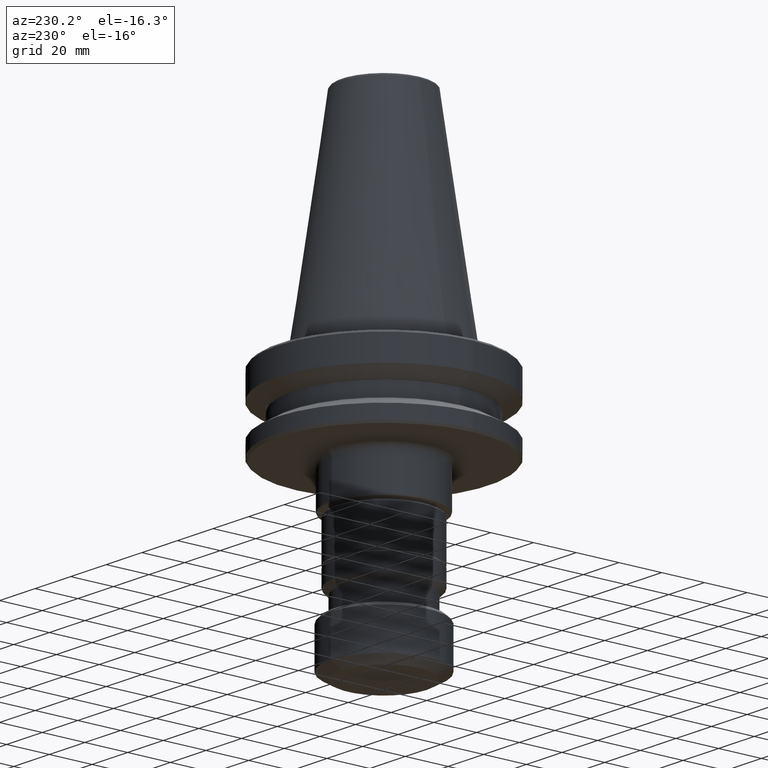
[diagram: clean part render]
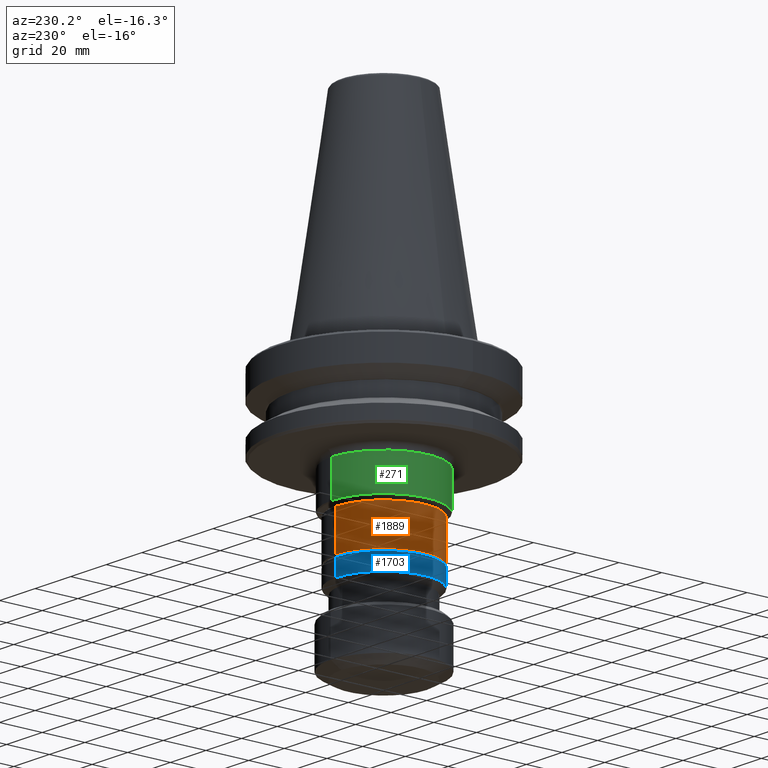
[diagram: same view with three faces highlighted in distinct colors, each labeled with its STEP entity id]
A machine part, auxiliary view with three faces highlighted in distinct colors.
Their STEP definitions:

[orange] entity #1889 — the highlighted cylindrical surface (partial cylindrical patch) has radius 22.5 mm, axis along (-0, -0, 1).
#104 = AXIS2_PLACEMENT_3D ( 'NONE', #587, #727, #1456 ) ;
#125 = CARTESIAN_POINT ( 'NONE',  ( 2.755455298077545300E-015, 22.49999999997063700, -77.29999999999992600 ) ) ;
#139 = EDGE_CURVE ( 'NONE', #920, #1890, #759, .T. ) ;
#172 = LINE ( 'NONE', #667, #791 ) ;
#234 = AXIS2_PLACEMENT_3D ( 'NONE', #1112, #264, #1264 ) ;
#264 = DIRECTION ( 'NONE',  ( -0.0000000000000000000, -4.261637339316356300E-014, 1.000000000000000000 ) ) ;
#309 = CARTESIAN_POINT ( 'NONE',  ( 0.0000000000000000000, -22.49999999996561700, -59.10000000000162100 ) ) ;
#335 = VECTOR ( 'NONE', #1675, 1000.000000000000000 ) ;
#372 = ORIENTED_EDGE ( 'NONE', *, *, #139, .T. ) ;
#458 = DIRECTION ( 'NONE',  ( -0.0000000000000000000, -4.261637339316356300E-014, 1.000000000000000000 ) ) ;
#537 = ORIENTED_EDGE ( 'NONE', *, *, #1408, .T. ) ;
#566 = AXIS2_PLACEMENT_3D ( 'NONE', #1328, #458, #1476 ) ;
#587 = CARTESIAN_POINT ( 'NONE',  ( 0.0000000000000000000, 0.0000000000000000000, 0.0000000000000000000 ) ) ;
#667 = CARTESIAN_POINT ( 'NONE',  ( 2.755455298077593800E-015, 22.49999999996774100, 9.588684013448052600E-013 ) ) ;
#727 = DIRECTION ( 'NONE',  ( -0.0000000000000000000, -4.261637339316356300E-014, 1.000000000000000000 ) ) ;
#729 = FACE_OUTER_BOUND ( 'NONE', #1654, .T. ) ;
#732 = CIRCLE ( 'NONE', #566, 22.49999999996734300 ) ;
#759 = LINE ( 'NONE', #1402, #335 ) ;
#775 = CARTESIAN_POINT ( 'NONE',  ( 2.755455298077618600E-015, 22.49999999997065800, -59.09999999999971000 ) ) ;
#791 = VECTOR ( 'NONE', #1496, 1000.000000000000000 ) ;
#920 = VERTEX_POINT ( 'NONE', #1008 ) ;
#950 = ORIENTED_EDGE ( 'NONE', *, *, #1064, .F. ) ;
#1008 = CARTESIAN_POINT ( 'NONE',  ( 0.0000000000000000000, -22.49999999996405400, -77.30000000000184500 ) ) ;
#1046 = ORIENTED_EDGE ( 'NONE', *, *, #1739, .F. ) ;
#1064 = EDGE_CURVE ( 'NONE', #1212, #1205, #172, .T. ) ;
#1112 = CARTESIAN_POINT ( 'NONE',  ( 0.0000000000000000000, 2.518627667535995100E-012, -59.10000000000066900 ) ) ;
#1205 = VERTEX_POINT ( 'NONE', #775 ) ;
#1212 = VERTEX_POINT ( 'NONE', #125 ) ;
#1243 = CIRCLE ( 'NONE', #234, 22.49999999996813600 ) ;
#1264 = DIRECTION ( 'NONE',  ( 0.0000000000000000000, -1.000000000000000000, -4.255854927735794100E-014 ) ) ;
#1328 = CARTESIAN_POINT ( 'NONE',  ( 0.0000000000000000000, 3.294245663291581100E-012, -77.30000000000087800 ) ) ;
#1402 = CARTESIAN_POINT ( 'NONE',  ( 0.0000000000000000000, -22.49999999996774100, -9.588684013448052600E-013 ) ) ;
#1408 = EDGE_CURVE ( 'NONE', #1212, #920, #732, .T. ) ;
#1456 = DIRECTION ( 'NONE',  ( 0.0000000000000000000, -1.000000000000000000, -4.261637339316355700E-014 ) ) ;
#1476 = DIRECTION ( 'NONE',  ( 0.0000000000000000000, -1.000000000000000000, -4.255854927735943600E-014 ) ) ;
#1496 = DIRECTION ( 'NONE',  ( -0.0000000000000000000, -4.261637339316356300E-014, 1.000000000000000000 ) ) ;
#1654 = EDGE_LOOP ( 'NONE', ( #950, #537, #372, #1046 ) ) ;
#1675 = DIRECTION ( 'NONE',  ( -0.0000000000000000000, -4.261637339316356300E-014, 1.000000000000000000 ) ) ;
#1739 = EDGE_CURVE ( 'NONE', #1205, #1890, #1243, .T. ) ;
#1753 = CYLINDRICAL_SURFACE ( 'NONE', #104, 22.49999999996774100 ) ;
#1889 = ADVANCED_FACE ( 'NONE', ( #729 ), #1753, .T. ) ;
#1890 = VERTEX_POINT ( 'NONE', #309 ) ;

[blue] entity #1703 — the highlighted cylindrical surface (partial cylindrical patch) has radius 22.5 mm, axis along (-0, -0, 1).
#49 = DIRECTION ( 'NONE',  ( -0.0000000000000000000, -4.261637339316356300E-014, 1.000000000000000000 ) ) ;
#89 = AXIS2_PLACEMENT_3D ( 'NONE', #1315, #440, #1457 ) ;
#105 = CARTESIAN_POINT ( 'NONE',  ( 0.0000000000000000000, 0.0000000000000000000, 0.0000000000000000000 ) ) ;
#197 = CARTESIAN_POINT ( 'NONE',  ( 2.755455298077522400E-015, 22.49999999996715500, 9.588684013447804200E-013 ) ) ;
#241 = DIRECTION ( 'NONE',  ( 0.0000000000000000000, -1.000000000000000000, -4.261637339316356300E-014 ) ) ;
#407 = VERTEX_POINT ( 'NONE', #803 ) ;
#440 = DIRECTION ( 'NONE',  ( -0.0000000000000000000, -4.261637339316356300E-014, 1.000000000000000000 ) ) ;
#503 = VECTOR ( 'NONE', #49, 1000.000000000000000 ) ;
#565 = DIRECTION ( 'NONE',  ( -0.0000000000000000000, -4.261637339316356300E-014, 1.000000000000000000 ) ) ;
#571 = CYLINDRICAL_SURFACE ( 'NONE', #1742, 22.49999999996715500 ) ;
#621 = CARTESIAN_POINT ( 'NONE',  ( 0.0000000000000000000, -22.49999999996715500, -9.588684013447804200E-013 ) ) ;
#682 = LINE ( 'NONE', #197, #503 ) ;
#803 = CARTESIAN_POINT ( 'NONE',  ( 2.755455298077532600E-015, 22.49999999997065100, -78.09999999999939700 ) ) ;
#886 = LINE ( 'NONE', #621, #1624 ) ;
#1031 = VERTEX_POINT ( 'NONE', #1616 ) ;
#1054 = DIRECTION ( 'NONE',  ( -0.0000000000000000000, -4.261637339316356300E-014, 1.000000000000000000 ) ) ;
#1133 = ORIENTED_EDGE ( 'NONE', *, *, #1283, .T. ) ;
#1136 = ORIENTED_EDGE ( 'NONE', *, *, #1500, .T. ) ;
#1159 = CIRCLE ( 'NONE', #89, 22.49999999996732600 ) ;
#1171 = EDGE_LOOP ( 'NONE', ( #1316, #1133, #1136, #1860 ) ) ;
#1208 = CARTESIAN_POINT ( 'NONE',  ( 2.755455298077501500E-015, 22.49999999997064400, -85.85000000000020700 ) ) ;
#1278 = AXIS2_PLACEMENT_3D ( 'NONE', #1435, #565, #1587 ) ;
#1283 = EDGE_CURVE ( 'NONE', #1541, #1530, #1653, .T. ) ;
#1315 = CARTESIAN_POINT ( 'NONE',  ( 0.0000000000000000000, 3.328338762006089200E-012, -78.10000000000035000 ) ) ;
#1316 = ORIENTED_EDGE ( 'NONE', *, *, #1489, .F. ) ;
#1352 = EDGE_CURVE ( 'NONE', #407, #1031, #1159, .T. ) ;
#1435 = CARTESIAN_POINT ( 'NONE',  ( 0.0000000000000000000, 3.658615655803141300E-012, -85.85000000000116000 ) ) ;
#1457 = DIRECTION ( 'NONE',  ( 0.0000000000000000000, -1.000000000000000000, -4.255854927735946800E-014 ) ) ;
#1489 = EDGE_CURVE ( 'NONE', #1541, #407, #682, .T. ) ;
#1500 = EDGE_CURVE ( 'NONE', #1530, #1031, #886, .T. ) ;
#1530 = VERTEX_POINT ( 'NONE', #1813 ) ;
#1541 = VERTEX_POINT ( 'NONE', #1208 ) ;
#1587 = DIRECTION ( 'NONE',  ( 0.0000000000000000000, -1.000000000000000000, -4.255854927736012400E-014 ) ) ;
#1616 = CARTESIAN_POINT ( 'NONE',  ( 0.0000000000000000000, -22.49999999996400000, -78.10000000000130200 ) ) ;
#1624 = VECTOR ( 'NONE', #1054, 1000.000000000000000 ) ;
#1653 = CIRCLE ( 'NONE', #1278, 22.49999999996698100 ) ;
#1700 = DIRECTION ( 'NONE',  ( -0.0000000000000000000, -4.261637339316356300E-014, 1.000000000000000000 ) ) ;
#1703 = ADVANCED_FACE ( 'NONE', ( #1749 ), #571, .T. ) ;
#1742 = AXIS2_PLACEMENT_3D ( 'NONE', #105, #1700, #241 ) ;
#1749 = FACE_OUTER_BOUND ( 'NONE', #1171, .T. ) ;
#1813 = CARTESIAN_POINT ( 'NONE',  ( 0.0000000000000000000, -22.49999999996331800, -85.85000000000212600 ) ) ;
#1860 = ORIENTED_EDGE ( 'NONE', *, *, #1352, .F. ) ;

[green] entity #271 — the highlighted cylindrical surface (partial cylindrical patch) has radius 24.5 mm, axis along (-0, -0, 1).
#106 = LINE ( 'NONE', #1422, #239 ) ;
#179 = VERTEX_POINT ( 'NONE', #971 ) ;
#239 = VECTOR ( 'NONE', #978, 1000.000000000000000 ) ;
#250 = ORIENTED_EDGE ( 'NONE', *, *, #1776, .F. ) ;
#271 = ADVANCED_FACE ( 'NONE', ( #1661 ), #822, .T. ) ;
#272 = EDGE_CURVE ( 'NONE', #179, #1578, #1210, .T. ) ;
#333 = VECTOR ( 'NONE', #722, 1000.000000000000000 ) ;
#344 = CARTESIAN_POINT ( 'NONE',  ( 0.0000000000000000000, 0.0000000000000000000, 0.0000000000000000000 ) ) ;
#377 = CARTESIAN_POINT ( 'NONE',  ( 0.0000000000000000000, -24.49999999996665800, -57.30000000000198700 ) ) ;
#387 = VERTEX_POINT ( 'NONE', #926 ) ;
#419 = DIRECTION ( 'NONE',  ( -0.0000000000000000000, -4.261637339316356300E-014, 1.000000000000000000 ) ) ;
#467 = ORIENTED_EDGE ( 'NONE', *, *, #1681, .T. ) ;
#615 = CIRCLE ( 'NONE', #1431, 24.49999999996910200 ) ;
#657 = LINE ( 'NONE', #1759, #333 ) ;
#722 = DIRECTION ( 'NONE',  ( -0.0000000000000000000, -4.261637339316356300E-014, 1.000000000000000000 ) ) ;
#808 = CARTESIAN_POINT ( 'NONE',  ( 0.0000000000000000000, 2.441918195428312400E-012, -57.30000000000094900 ) ) ;
#822 = CYLINDRICAL_SURFACE ( 'NONE', #1465, 24.49999999996945000 ) ;
#851 = DIRECTION ( 'NONE',  ( 0.0000000000000000000, -1.000000000000000000, -4.248302390152520300E-014 ) ) ;
#926 = CARTESIAN_POINT ( 'NONE',  ( 3.000384657907232100E-015, 24.49999999997154600, -57.29999999999990500 ) ) ;
#962 = DIRECTION ( 'NONE',  ( 0.0000000000000000000, -1.000000000000000000, -4.248302390152640200E-014 ) ) ;
#971 = CARTESIAN_POINT ( 'NONE',  ( 3.184081677779420400E-015, 24.49999999997154300, -40.99999999999970200 ) ) ;
#978 = DIRECTION ( 'NONE',  ( -0.0000000000000000000, -4.261637339316356300E-014, 1.000000000000000000 ) ) ;
#1187 = EDGE_LOOP ( 'NONE', ( #250, #467, #1517, #1301 ) ) ;
#1198 = DIRECTION ( 'NONE',  ( -0.0000000000000000000, -4.261637339316356300E-014, 1.000000000000000000 ) ) ;
#1210 = CIRCLE ( 'NONE', #1370, 24.49999999996979500 ) ;
#1284 = DIRECTION ( 'NONE',  ( 0.0000000000000000000, -1.000000000000000000, -4.261637339316356300E-014 ) ) ;
#1301 = ORIENTED_EDGE ( 'NONE', *, *, #272, .F. ) ;
#1370 = AXIS2_PLACEMENT_3D ( 'NONE', #1478, #419, #851 ) ;
#1422 = CARTESIAN_POINT ( 'NONE',  ( 3.000384657907273900E-015, 24.49999999996945000, 1.044101148131205300E-012 ) ) ;
#1431 = AXIS2_PLACEMENT_3D ( 'NONE', #808, #1858, #962 ) ;
#1465 = AXIS2_PLACEMENT_3D ( 'NONE', #344, #1198, #1284 ) ;
#1478 = CARTESIAN_POINT ( 'NONE',  ( 0.0000000000000000000, 1.747271309119737800E-012, -41.00000000000074600 ) ) ;
#1517 = ORIENTED_EDGE ( 'NONE', *, *, #1878, .T. ) ;
#1578 = VERTEX_POINT ( 'NONE', #1832 ) ;
#1661 = FACE_OUTER_BOUND ( 'NONE', #1187, .T. ) ;
#1681 = EDGE_CURVE ( 'NONE', #387, #1693, #615, .T. ) ;
#1693 = VERTEX_POINT ( 'NONE', #377 ) ;
#1759 = CARTESIAN_POINT ( 'NONE',  ( 0.0000000000000000000, -24.49999999996945000, -1.044101148131205300E-012 ) ) ;
#1776 = EDGE_CURVE ( 'NONE', #387, #179, #106, .T. ) ;
#1832 = CARTESIAN_POINT ( 'NONE',  ( 0.0000000000000000000, -24.49999999996804700, -41.00000000000178300 ) ) ;
#1858 = DIRECTION ( 'NONE',  ( -0.0000000000000000000, -4.261637339316356300E-014, 1.000000000000000000 ) ) ;
#1878 = EDGE_CURVE ( 'NONE', #1693, #1578, #657, .T. ) ;